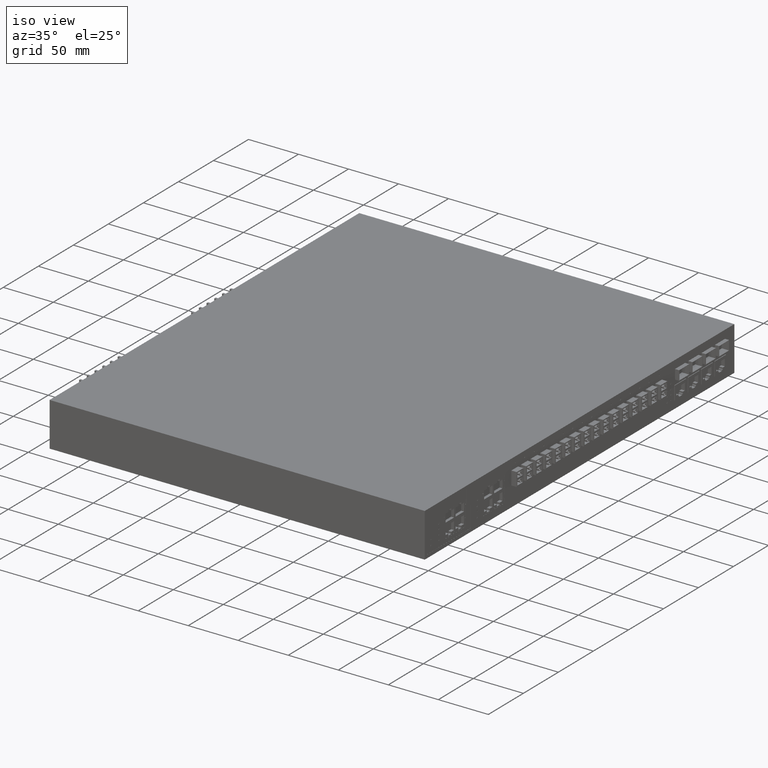
[diagram: clean part render]
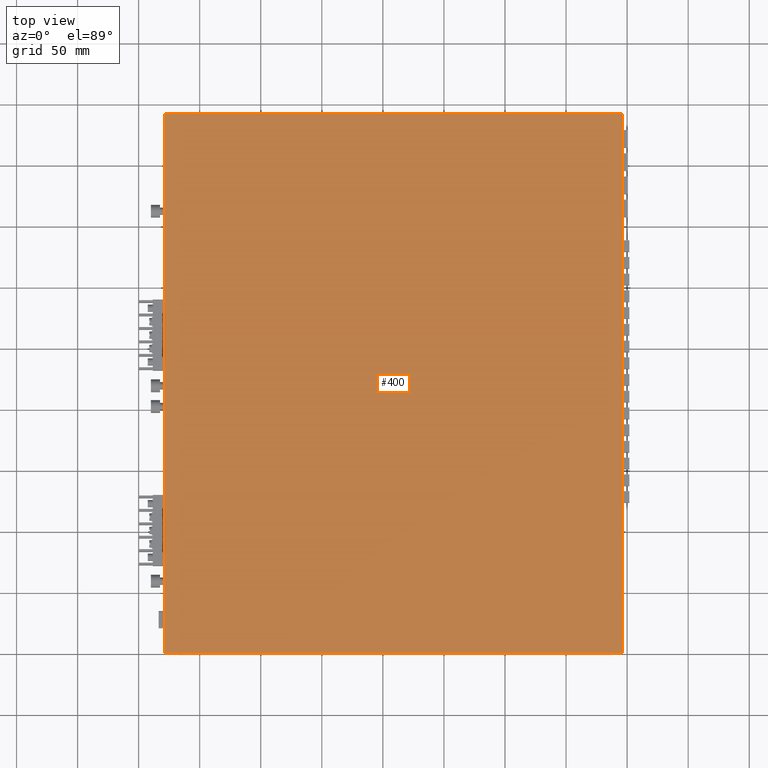
[diagram: tour spotlight — one face highlighted and labeled with its STEP entity id]
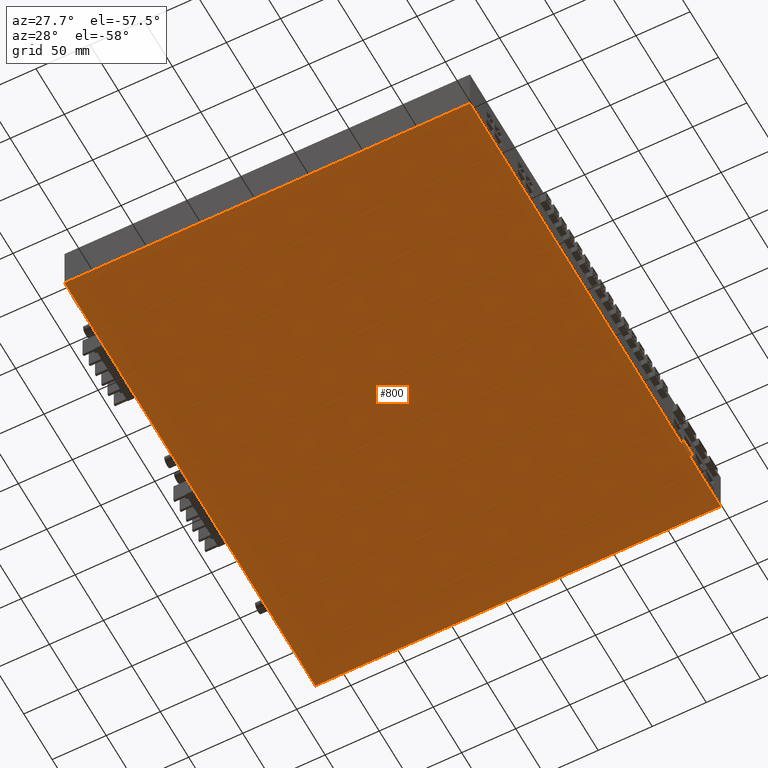
[diagram: tour spotlight — one face highlighted and labeled with its STEP entity id]
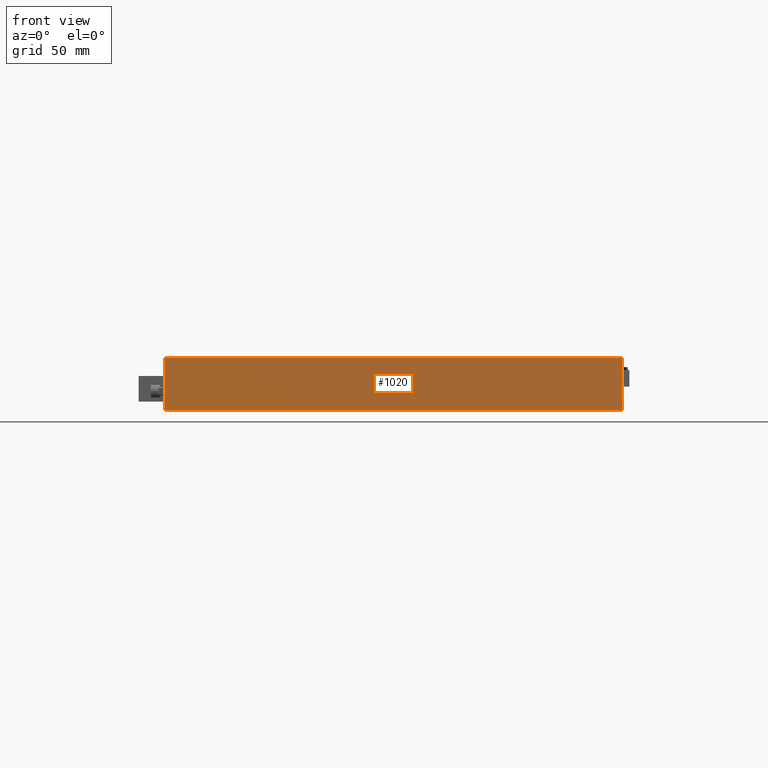
[diagram: tour spotlight — one face highlighted and labeled with its STEP entity id]
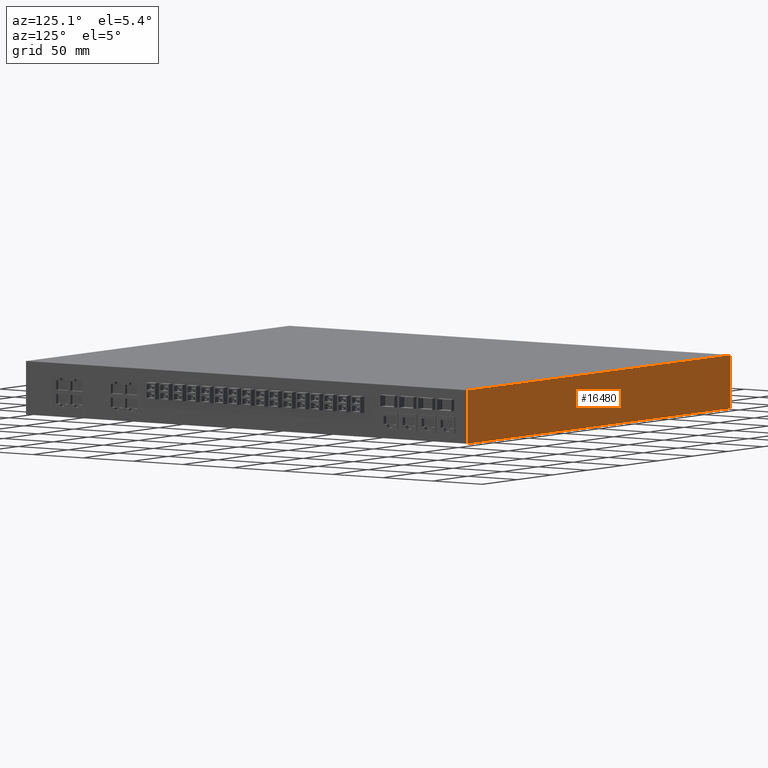
[diagram: tour spotlight — one face highlighted and labeled with its STEP entity id]
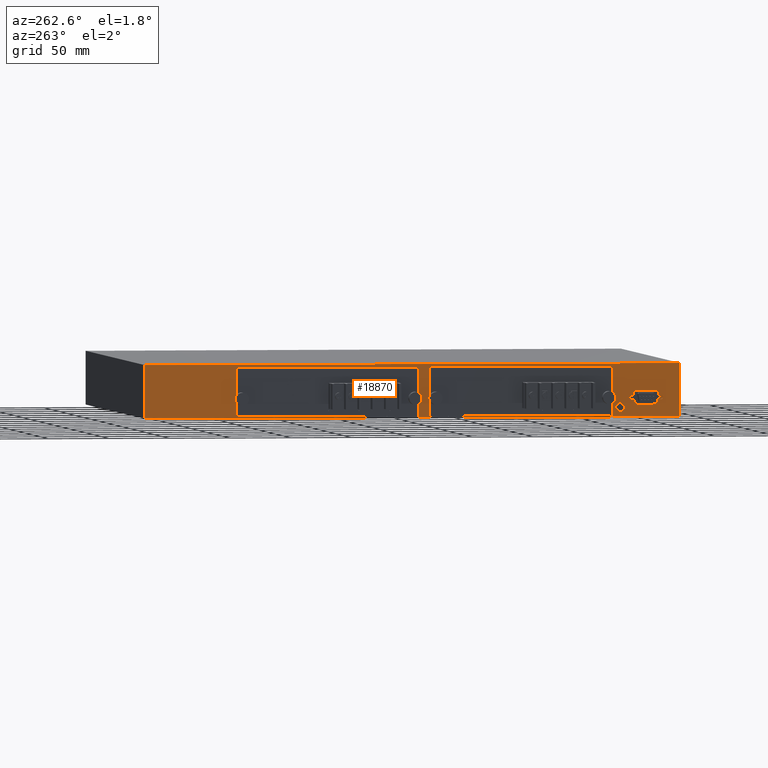
[diagram: tour spotlight — one face highlighted and labeled with its STEP entity id]
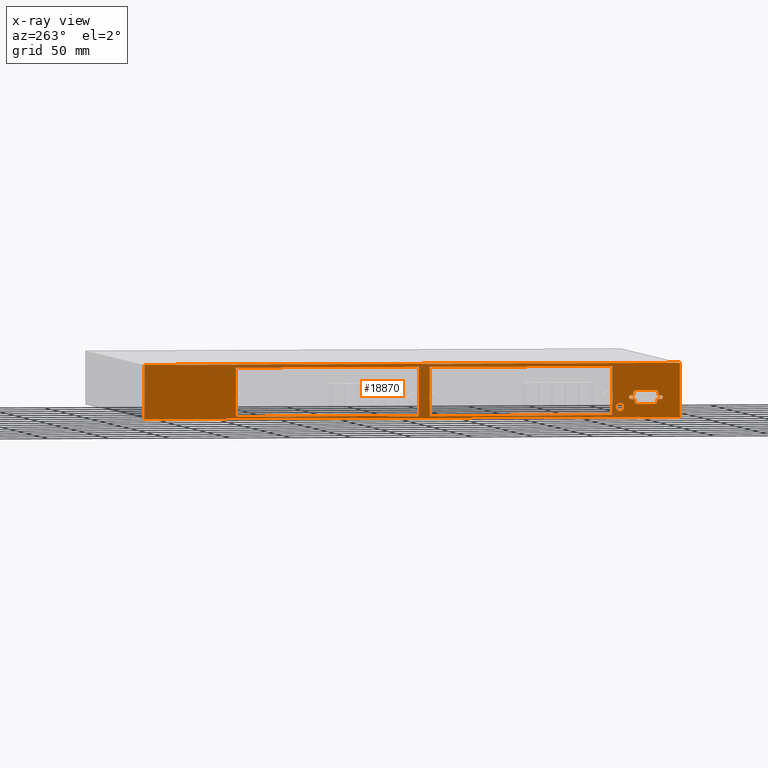
[diagram: x-ray of the same camera — body ghosted, this tour face saturated]
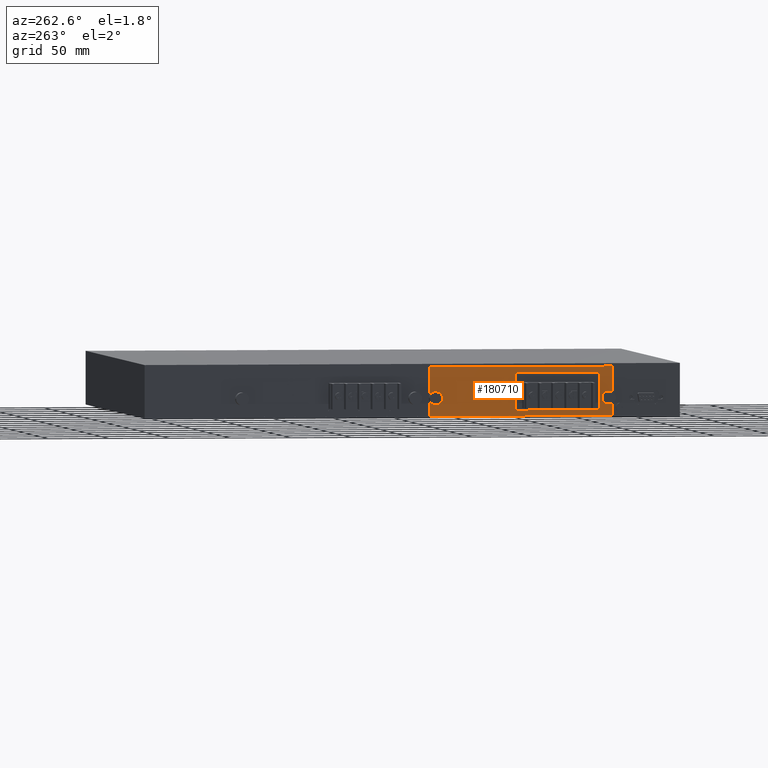
[diagram: tour spotlight — one face highlighted and labeled with its STEP entity id]
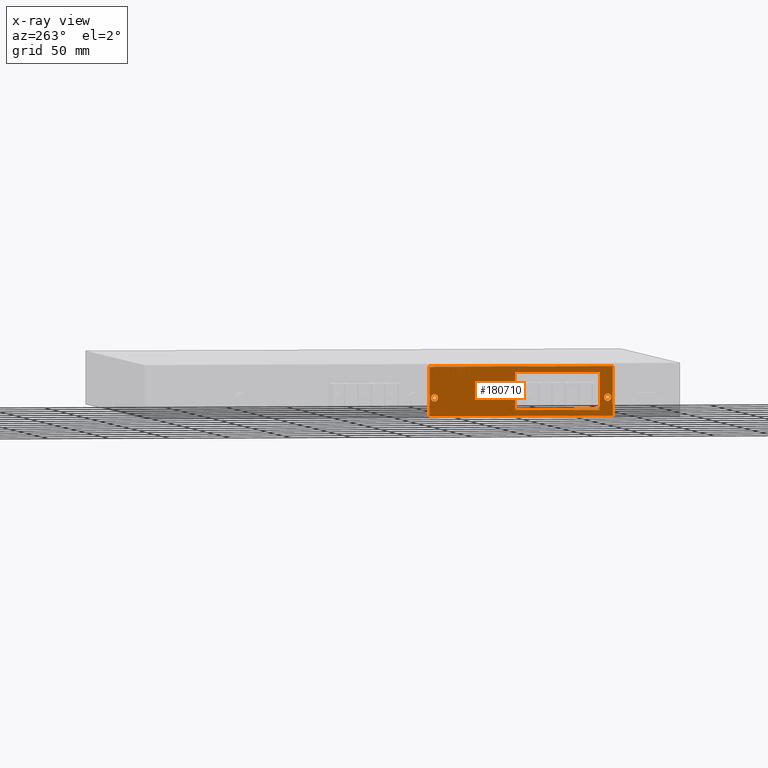
[diagram: x-ray of the same camera — body ghosted, this tour face saturated]
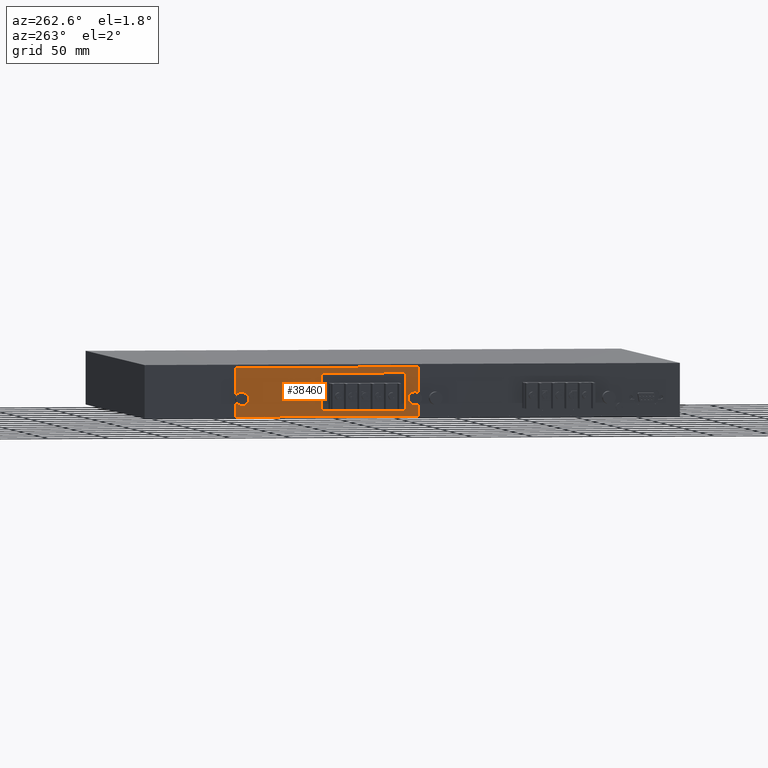
[diagram: tour spotlight — one face highlighted and labeled with its STEP entity id]
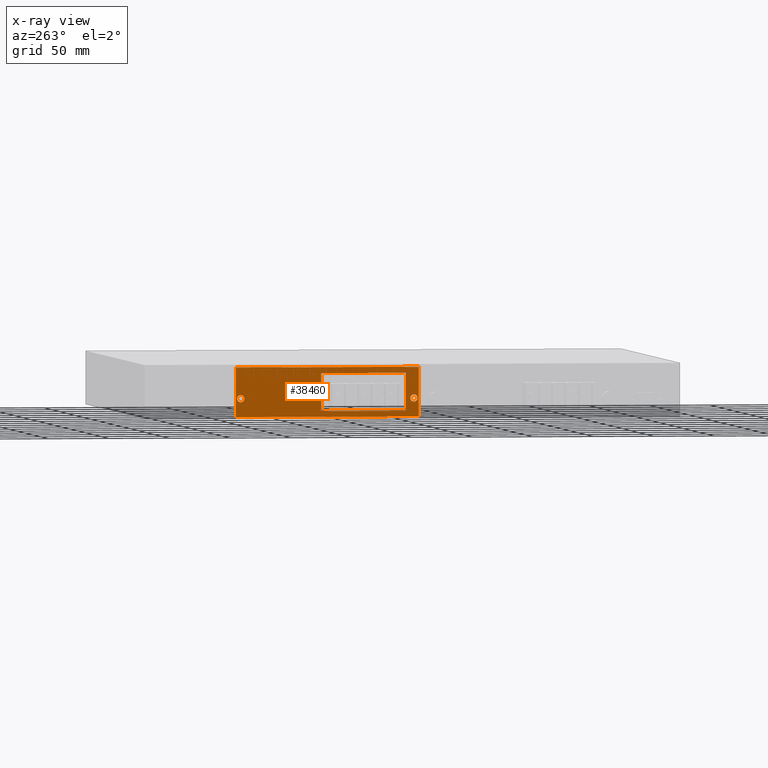
[diagram: x-ray of the same camera — body ghosted, this tour face saturated]
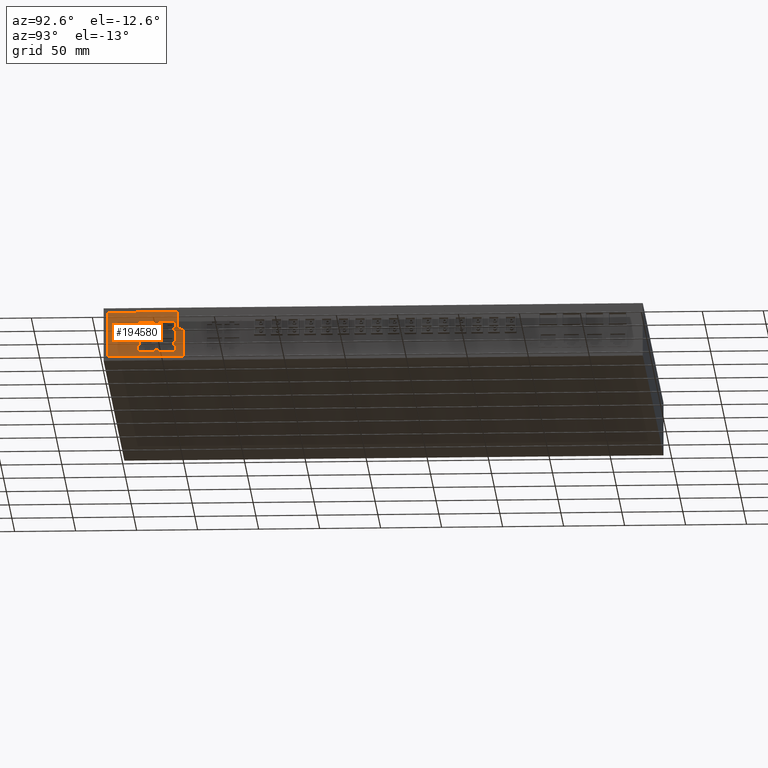
[diagram: tour spotlight — one face highlighted and labeled with its STEP entity id]
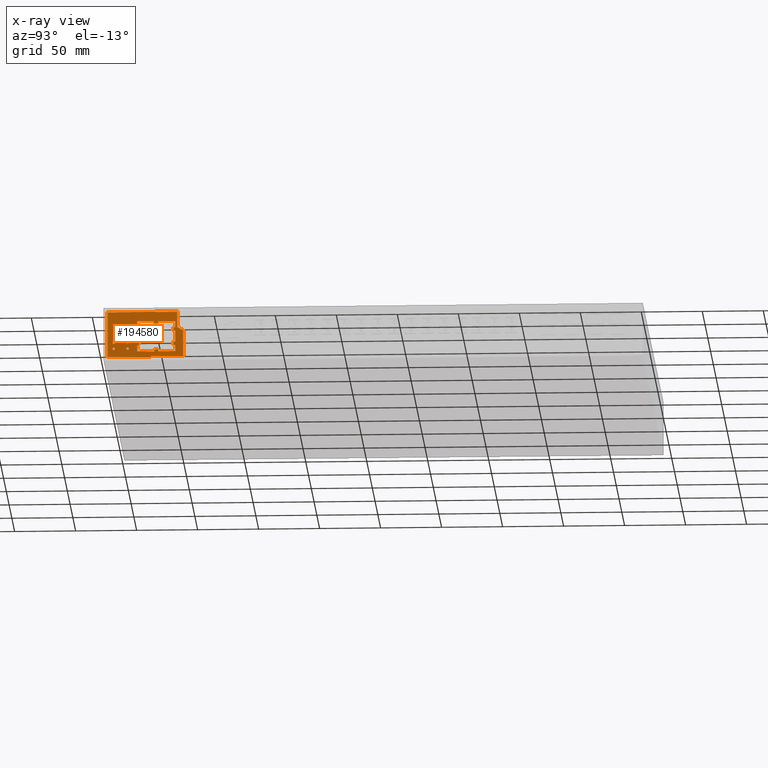
[diagram: x-ray of the same camera — body ghosted, this tour face saturated]
A machine part: a face-by-face anatomy tour. The part has 1148 B-rep faces; the first image is the clean iso view, then the 8 largest visible faces are spotlighted one at a time (largest first), each with its STEP entity span.

Face 1 — top view, entity #400. In plain terms, the highlighted planar face has unit normal (0, 0, 1).
Definition (entity closure, byte-faithful):
#10=CARTESIAN_POINT('',(-231.744053107435,4.40363222366137,
384.37506614998));
#20=DIRECTION('',(-0.,1.,0.));
#30=DIRECTION('',(1.,0.,0.));
#40=AXIS2_PLACEMENT_3D('',#10,#20,#30);
#50=PLANE('',#40);
#60=CARTESIAN_POINT('',(0.,4.40363222366137,-1.97246663447004E-11));
#70=DIRECTION('',(-1.,0.,0.));
#80=VECTOR('',#70,1.);
#90=LINE('',#60,#80);
#100=CARTESIAN_POINT('',(221.306013042565,4.40363222366137,-1.9725E-11))
;
#110=VERTEX_POINT('',#100);
#120=CARTESIAN_POINT('',(-220.693986957435,4.40363222366137,-1.9725E-11)
);
#130=VERTEX_POINT('',#120);
#140=EDGE_CURVE('',#110,#130,#90,.T.);
#150=ORIENTED_EDGE('',*,*,#140,.T.);
#160=CARTESIAN_POINT('',(221.306013042565,4.40363222366137,0.));
#170=DIRECTION('',(0.,0.,1.));
#180=VECTOR('',#170,1.);
#190=LINE('',#160,#180);
#200=CARTESIAN_POINT('',(221.306013042565,4.40363222366137,
374.99999999998));
#210=VERTEX_POINT('',#200);
#220=EDGE_CURVE('',#110,#210,#190,.T.);
#230=ORIENTED_EDGE('',*,*,#220,.F.);
#240=CARTESIAN_POINT('',(0.,4.40363222366137,374.99999999998));
#250=DIRECTION('',(-1.,0.,0.));
#260=VECTOR('',#250,1.);
#270=LINE('',#240,#260);
#280=CARTESIAN_POINT('',(-220.693986957435,4.40363222366137,
374.99999999998));
#290=VERTEX_POINT('',#280);
#300=EDGE_CURVE('',#210,#290,#270,.T.);
#310=ORIENTED_EDGE('',*,*,#300,.F.);
#320=CARTESIAN_POINT('',(-220.693986957435,4.40363222366137,0.));
#330=DIRECTION('',(0.,0.,-1.));
#340=VECTOR('',#330,1.);
#350=LINE('',#320,#340);
#360=EDGE_CURVE('',#290,#130,#350,.T.);
#370=ORIENTED_EDGE('',*,*,#360,.F.);
#380=EDGE_LOOP('',(#370,#310,#230,#150));
#390=FACE_OUTER_BOUND('',#380,.T.);
#400=ADVANCED_FACE('',(#390),#50,.T.);

Face 2 — auxiliary view, entity #800. In plain terms, the highlighted planar face has unit normal (-0, -0, -1).
Definition (entity closure, byte-faithful):
#410=CARTESIAN_POINT('',(232.356079192565,-39.5963677763395,
384.37506614998));
#420=DIRECTION('',(-0.,-1.,-0.));
#430=DIRECTION('',(-1.,0.,0.));
#440=AXIS2_PLACEMENT_3D('',#410,#420,#430);
#450=PLANE('',#440);
#460=CARTESIAN_POINT('',(-220.693986957435,-39.5963677763395,0.));
#470=DIRECTION('',(0.,0.,1.));
#480=VECTOR('',#470,1.);
#490=LINE('',#460,#480);
#500=CARTESIAN_POINT('',(-220.693986957435,-39.5963677763395,-1.9725E-11
));
#510=VERTEX_POINT('',#500);
#520=CARTESIAN_POINT('',(-220.693986957435,-39.5963677763395,
374.99999999998));
#530=VERTEX_POINT('',#520);
#540=EDGE_CURVE('',#510,#530,#490,.T.);
#550=ORIENTED_EDGE('',*,*,#540,.F.);
#560=CARTESIAN_POINT('',(0.,-39.5963677763395,374.99999999998));
#570=DIRECTION('',(1.,0.,0.));
#580=VECTOR('',#570,1.);
#590=LINE('',#560,#580);
#600=CARTESIAN_POINT('',(221.306013042565,-39.5963677763395,
374.99999999998));
#610=VERTEX_POINT('',#600);
#620=EDGE_CURVE('',#530,#610,#590,.T.);
#630=ORIENTED_EDGE('',*,*,#620,.F.);
#640=CARTESIAN_POINT('',(221.306013042565,-39.5963677763395,0.));
#650=DIRECTION('',(0.,0.,-1.));
#660=VECTOR('',#650,1.);
#670=LINE('',#640,#660);
#680=CARTESIAN_POINT('',(221.306013042565,-39.5963677763395,-1.9725E-11)
);
#690=VERTEX_POINT('',#680);
#700=EDGE_CURVE('',#610,#690,#670,.T.);
#710=ORIENTED_EDGE('',*,*,#700,.F.);
#720=CARTESIAN_POINT('',(0.,-39.5963677763395,-1.97246663447004E-11));
#730=DIRECTION('',(1.,0.,0.));
#740=VECTOR('',#730,1.);
#750=LINE('',#720,#740);
#760=EDGE_CURVE('',#510,#690,#750,.T.);
#770=ORIENTED_EDGE('',*,*,#760,.T.);
#780=EDGE_LOOP('',(#770,#710,#630,#550));
#790=FACE_OUTER_BOUND('',#780,.T.);
#800=ADVANCED_FACE('',(#790),#450,.T.);

Face 3 — front view, entity #1020. In plain terms, the highlighted planar face has unit normal (0, -1, 0).
Definition (entity closure, byte-faithful):
#120=CARTESIAN_POINT('',(-220.693986957435,4.40363222366137,-1.9725E-11)
);
#130=VERTEX_POINT('',#120);
#280=CARTESIAN_POINT('',(-220.693986957435,4.40363222366137,
374.99999999998));
#290=VERTEX_POINT('',#280);
#320=CARTESIAN_POINT('',(-220.693986957435,4.40363222366137,0.));
#330=DIRECTION('',(0.,0.,-1.));
#340=VECTOR('',#330,1.);
#350=LINE('',#320,#340);
#360=EDGE_CURVE('',#290,#130,#350,.T.);
#460=CARTESIAN_POINT('',(-220.693986957435,-39.5963677763395,0.));
#470=DIRECTION('',(0.,0.,1.));
#480=VECTOR('',#470,1.);
#490=LINE('',#460,#480);
#500=CARTESIAN_POINT('',(-220.693986957435,-39.5963677763395,-1.9725E-11
));
#510=VERTEX_POINT('',#500);
#520=CARTESIAN_POINT('',(-220.693986957435,-39.5963677763395,
374.99999999998));
#530=VERTEX_POINT('',#520);
#540=EDGE_CURVE('',#510,#530,#490,.T.);
#810=CARTESIAN_POINT('',(-220.693986957435,-40.6964339263395,
384.37506614998));
#820=DIRECTION('',(-1.,0.,0.));
#830=DIRECTION('',(0.,1.,0.));
#840=AXIS2_PLACEMENT_3D('',#810,#820,#830);
#850=PLANE('',#840);
#860=CARTESIAN_POINT('',(-220.693986957435,0.,374.99999999998));
#870=DIRECTION('',(0.,-1.,0.));
#880=VECTOR('',#870,1.);
#890=LINE('',#860,#880);
#900=EDGE_CURVE('',#290,#530,#890,.T.);
#910=ORIENTED_EDGE('',*,*,#900,.F.);
#920=ORIENTED_EDGE('',*,*,#540,.T.);
#930=CARTESIAN_POINT('',(-220.693986957435,0.,-1.97246663447004E-11));
#940=DIRECTION('',(0.,-1.,0.));
#950=VECTOR('',#940,1.);
#960=LINE('',#930,#950);
#970=EDGE_CURVE('',#130,#510,#960,.T.);
#980=ORIENTED_EDGE('',*,*,#970,.T.);
#990=ORIENTED_EDGE('',*,*,#360,.T.);
#1000=EDGE_LOOP('',(#990,#980,#920,#910));
#1010=FACE_OUTER_BOUND('',#1000,.T.);
#1020=ADVANCED_FACE('',(#1010),#850,.T.);

Face 4 — auxiliary view, entity #16480. In plain terms, the highlighted planar face has unit normal (0, 1, 0).
Definition (entity closure, byte-faithful):
#100=CARTESIAN_POINT('',(221.306013042565,4.40363222366137,-1.9725E-11))
;
#110=VERTEX_POINT('',#100);
#160=CARTESIAN_POINT('',(221.306013042565,4.40363222366137,0.));
#170=DIRECTION('',(0.,0.,1.));
#180=VECTOR('',#170,1.);
#190=LINE('',#160,#180);
#200=CARTESIAN_POINT('',(221.306013042565,4.40363222366137,
374.99999999998));
#210=VERTEX_POINT('',#200);
#220=EDGE_CURVE('',#110,#210,#190,.T.);
#600=CARTESIAN_POINT('',(221.306013042565,-39.5963677763395,
374.99999999998));
#610=VERTEX_POINT('',#600);
#640=CARTESIAN_POINT('',(221.306013042565,-39.5963677763395,0.));
#650=DIRECTION('',(0.,0.,-1.));
#660=VECTOR('',#650,1.);
#670=LINE('',#640,#660);
#680=CARTESIAN_POINT('',(221.306013042565,-39.5963677763395,-1.9725E-11)
);
#690=VERTEX_POINT('',#680);
#700=EDGE_CURVE('',#610,#690,#670,.T.);
#1080=CARTESIAN_POINT('',(221.306013042565,0.,374.99999999998));
#1090=DIRECTION('',(0.,1.,0.));
#1100=VECTOR('',#1090,1.);
#1110=LINE('',#1080,#1100);
#1120=EDGE_CURVE('',#610,#210,#1110,.T.);
#16320=CARTESIAN_POINT('',(221.306013042565,5.50369837366139,
384.37506614998));
#16330=DIRECTION('',(1.,0.,0.));
#16340=DIRECTION('',(0.,-1.,0.));
#16350=AXIS2_PLACEMENT_3D('',#16320,#16330,#16340);
#16360=PLANE('',#16350);
#16370=CARTESIAN_POINT('',(221.306013042565,0.,-1.97246663447004E-11));
#16380=DIRECTION('',(0.,1.,0.));
#16390=VECTOR('',#16380,1.);
#16400=LINE('',#16370,#16390);
#16410=EDGE_CURVE('',#690,#110,#16400,.T.);
#16420=ORIENTED_EDGE('',*,*,#16410,.T.);
#16430=ORIENTED_EDGE('',*,*,#700,.T.);
#16440=ORIENTED_EDGE('',*,*,#1120,.F.);
#16450=ORIENTED_EDGE('',*,*,#220,.T.);
#16460=EDGE_LOOP('',(#16450,#16440,#16430,#16420));
#16470=FACE_OUTER_BOUND('',#16460,.T.);
#16480=ADVANCED_FACE('',(#16470),#16360,.T.);

Face 5 — auxiliary view, entity #18870. An x-ray twin of the same camera follows (body ghosted, this face saturated) — the face is partly hidden behind the body. In plain terms, the highlighted planar face has unit normal (-1, 0, 0).
Definition (entity closure, byte-faithful):
#60=CARTESIAN_POINT('',(0.,4.40363222366137,-1.97246663447004E-11));
#70=DIRECTION('',(-1.,0.,0.));
#80=VECTOR('',#70,1.);
#90=LINE('',#60,#80);
#100=CARTESIAN_POINT('',(221.306013042565,4.40363222366137,-1.9725E-11))
;
#110=VERTEX_POINT('',#100);
#120=CARTESIAN_POINT('',(-220.693986957435,4.40363222366137,-1.9725E-11)
);
#130=VERTEX_POINT('',#120);
#140=EDGE_CURVE('',#110,#130,#90,.T.);
#500=CARTESIAN_POINT('',(-220.693986957435,-39.5963677763395,-1.9725E-11
));
#510=VERTEX_POINT('',#500);
#680=CARTESIAN_POINT('',(221.306013042565,-39.5963677763395,-1.9725E-11)
);
#690=VERTEX_POINT('',#680);
#720=CARTESIAN_POINT('',(0.,-39.5963677763395,-1.97246663447004E-11));
#730=DIRECTION('',(1.,0.,0.));
#740=VECTOR('',#730,1.);
#750=LINE('',#720,#740);
#760=EDGE_CURVE('',#510,#690,#750,.T.);
#930=CARTESIAN_POINT('',(-220.693986957435,0.,-1.97246663447004E-11));
#940=DIRECTION('',(0.,-1.,0.));
#950=VECTOR('',#940,1.);
#960=LINE('',#930,#950);
#970=EDGE_CURVE('',#130,#510,#960,.T.);
#16370=CARTESIAN_POINT('',(221.306013042565,0.,-1.97246663447004E-11));
#16380=DIRECTION('',(0.,1.,0.));
#16390=VECTOR('',#16380,1.);
#16400=LINE('',#16370,#16390);
#16410=EDGE_CURVE('',#690,#110,#16400,.T.);
#16490=CARTESIAN_POINT('',(232.356079192565,-40.6964339263395,
-1.97246663447004E-11));
#16500=DIRECTION('',(0.,0.,-1.));
#16510=DIRECTION('',(-1.,0.,0.));
#16520=AXIS2_PLACEMENT_3D('',#16490,#16500,#16510);
#16530=PLANE('',#16520);
#16540=ORIENTED_EDGE('',*,*,#140,.F.);
#16550=ORIENTED_EDGE('',*,*,#970,.F.);
#16560=ORIENTED_EDGE('',*,*,#760,.F.);
#16570=ORIENTED_EDGE('',*,*,#16410,.F.);
#16580=EDGE_LOOP('',(#16570,#16560,#16550,#16540));
#16590=FACE_OUTER_BOUND('',#16580,.T.);
#16600=CARTESIAN_POINT('',(0.,2.0036322236605,-1.97246663447004E-11));
#16610=DIRECTION('',(1.,0.,0.));
#16620=VECTOR('',#16610,1.);
#16630=LINE('',#16600,#16620);
#16640=CARTESIAN_POINT('',(-165.093986957435,2.0036322236605,-1.9725E-11
));
#16650=VERTEX_POINT('',#16640);
#16660=CARTESIAN_POINT('',(-14.0939869574354,2.0036322236605,-1.9725E-11
));
#16670=VERTEX_POINT('',#16660);
#16680=EDGE_CURVE('',#16650,#16670,#16630,.T.);
#16690=ORIENTED_EDGE('',*,*,#16680,.F.);
#16700=CARTESIAN_POINT('',(-14.0939869574354,0.,-1.97246663447004E-11));
#16710=DIRECTION('',(0.,-1.,0.));
#16720=VECTOR('',#16710,1.);
#16730=LINE('',#16700,#16720);
#16740=CARTESIAN_POINT('',(-14.0939869574354,-38.4963677763395,
-1.9725E-11));
#16750=VERTEX_POINT('',#16740);
#16760=EDGE_CURVE('',#16670,#16750,#16730,.T.);
#16770=ORIENTED_EDGE('',*,*,#16760,.F.);
#16780=CARTESIAN_POINT('',(0.,-38.4963677763395,-1.97246663447004E-11));
#16790=DIRECTION('',(-1.,0.,0.));
#16800=VECTOR('',#16790,1.);
#16810=LINE('',#16780,#16800);
#16820=CARTESIAN_POINT('',(-165.093986957435,-38.4963677763395,
-1.9725E-11));
#16830=VERTEX_POINT('',#16820);
#16840=EDGE_CURVE('',#16750,#16830,#16810,.T.);
#16850=ORIENTED_EDGE('',*,*,#16840,.F.);
#16860=CARTESIAN_POINT('',(-165.093986957435,0.,-1.97246663447004E-11));
#16870=DIRECTION('',(0.,1.,0.));
#16880=VECTOR('',#16870,1.);
#16890=LINE('',#16860,#16880);
#16900=EDGE_CURVE('',#16830,#16650,#16890,.T.);
#16910=ORIENTED_EDGE('',*,*,#16900,.F.);
#16920=EDGE_LOOP('',(#16910,#16850,#16770,#16690));
#16930=FACE_BOUND('',#16920,.T.);
#16940=CARTESIAN_POINT('',(0.,-38.4963677763395,-1.97246663447004E-11));
#16950=DIRECTION('',(-1.,0.,0.));
#16960=VECTOR('',#16950,1.);
#16970=LINE('',#16940,#16960);
#16980=CARTESIAN_POINT('',(145.906013042565,-38.4963677763395,
-1.9725E-11));
#16990=VERTEX_POINT('',#16980);
#17000=CARTESIAN_POINT('',(-5.09398695743528,-38.4963677763395,
-1.9725E-11));
#17010=VERTEX_POINT('',#17000);
#17020=EDGE_CURVE('',#16990,#17010,#16970,.T.);
#17030=ORIENTED_EDGE('',*,*,#17020,.F.);
#17040=CARTESIAN_POINT('',(-5.09398695743528,0.,-1.97246663447004E-11));
#17050=DIRECTION('',(0.,1.,0.));
#17060=VECTOR('',#17050,1.);
#17070=LINE('',#17040,#17060);
#17080=CARTESIAN_POINT('',(-5.09398695743528,2.0036322236605,-1.9725E-11
));
#17090=VERTEX_POINT('',#17080);
#17100=EDGE_CURVE('',#17010,#17090,#17070,.T.);
#17110=ORIENTED_EDGE('',*,*,#17100,.F.);
#17120=CARTESIAN_POINT('',(0.,2.0036322236605,-1.97246663447004E-11));
#17130=DIRECTION('',(1.,0.,0.));
#17140=VECTOR('',#17130,1.);
#17150=LINE('',#17120,#17140);
#17160=CARTESIAN_POINT('',(145.906013042565,2.0036322236605,-1.9725E-11)
);
#17170=VERTEX_POINT('',#17160);
#17180=EDGE_CURVE('',#17090,#17170,#17150,.T.);
#17190=ORIENTED_EDGE('',*,*,#17180,.F.);
#17200=CARTESIAN_POINT('',(145.906013042565,0.,-1.97246663447004E-11));
#17210=DIRECTION('',(0.,-1.,0.));
#17220=VECTOR('',#17210,1.);
#17230=LINE('',#17200,#17220);
#17240=EDGE_CURVE('',#17170,#16990,#17230,.T.);
#17250=ORIENTED_EDGE('',*,*,#17240,.F.);
#17260=EDGE_LOOP('',(#17250,#17190,#17110,#17030));
#17270=FACE_BOUND('',#17260,.T.);
#17280=CARTESIAN_POINT('',(0.,-29.2963677763395,-1.97246663447004E-11));
#17290=DIRECTION('',(-1.,0.,0.));
#17300=VECTOR('',#17290,1.);
#17310=LINE('',#17280,#17300);
#17320=CARTESIAN_POINT('',(-185.801863615455,-29.2963677763394,
-1.9725E-11));
#17330=VERTEX_POINT('',#17320);
#17340=CARTESIAN_POINT('',(-199.586110299416,-29.2963677763395,
-1.9725E-11));
#17350=VERTEX_POINT('',#17340);
#17360=EDGE_CURVE('',#17330,#17350,#17310,.T.);
#17370=ORIENTED_EDGE('',*,*,#17360,.F.);
#17380=CARTESIAN_POINT('',(-199.586110299416,-26.7963677763395,
-1.97246663447004E-11));
#17390=DIRECTION('',(0.,0.,1.));
#17400=DIRECTION('',(1.,0.,0.));
#17410=AXIS2_PLACEMENT_3D('',#17380,#17390,#17400);
#17420=CIRCLE('',#17410,2.50000000000003);
#17430=CARTESIAN_POINT('',(-202.048129681946,-27.2304882205068,
-1.9725E-11));
#17440=VERTEX_POINT('',#17430);
#17450=EDGE_CURVE('',#17440,#17350,#17420,.T.);
#17460=ORIENTED_EDGE('',*,*,#17450,.T.);
#17470=CARTESIAN_POINT('',(-206.849599453086,0.,-1.97246663447004E-11));
#17480=DIRECTION('',(-0.173648177666933,0.984807753012208,0.));
#17490=VECTOR('',#17480,1.);
#17500=LINE('',#17470,#17490);
#17510=CARTESIAN_POINT('',(-202.406799998264,-25.1963677763395,
-1.9725E-11));
#17520=VERTEX_POINT('',#17510);
#17530=EDGE_CURVE('',#17440,#17520,#17500,.T.);
#17540=ORIENTED_EDGE('',*,*,#17530,.F.);
#17550=CARTESIAN_POINT('',(0.,-25.1963677763395,-1.97246663447004E-11));
#17560=DIRECTION('',(-1.,0.,0.));
#17570=VECTOR('',#17560,1.);
#17580=LINE('',#17550,#17570);
#17590=CARTESIAN_POINT('',(-205.193986957435,-25.1963677763395,
-1.9725E-11));
#17600=VERTEX_POINT('',#17590);
#17610=EDGE_CURVE('',#17520,#17600,#17580,.T.);
#17620=ORIENTED_EDGE('',*,*,#17610,.F.);
#17630=CARTESIAN_POINT('',(-205.193986957435,-23.5963677763395,
-1.97246663447004E-11));
#17640=DIRECTION('',(0.,0.,1.));
#17650=DIRECTION('',(1.,0.,0.));
#17660=AXIS2_PLACEMENT_3D('',#17630,#17640,#17650);
#17670=CIRCLE('',#17660,1.60000000000001);
#17680=CARTESIAN_POINT('',(-206.793986957435,-23.5963677763395,
-1.97246663447004E-11));
#17690=VERTEX_POINT('',#17680);
#17700=EDGE_CURVE('',#17690,#17600,#17670,.T.);
#17710=ORIENTED_EDGE('',*,*,#17700,.T.);
#17720=CARTESIAN_POINT('',(-205.193986957435,-21.9963677763395,
-1.9725E-11));
#17730=VERTEX_POINT('',#17720);
#17740=EDGE_CURVE('',#17730,#17690,#17670,.T.);
#17750=ORIENTED_EDGE('',*,*,#17740,.T.);
#17760=CARTESIAN_POINT('',(0.,-21.9963677763395,-1.97246663447004E-11));
#17770=DIRECTION('',(1.,0.,0.));
#17780=VECTOR('',#17770,1.);
#17790=LINE('',#17760,#17780);
#17800=CARTESIAN_POINT('',(-202.971046336531,-21.9963677763395,
-1.9725E-11));
#17810=VERTEX_POINT('',#17800);
#17820=EDGE_CURVE('',#17730,#17810,#17790,.T.);
#17830=ORIENTED_EDGE('',*,*,#17820,.F.);
#17840=CARTESIAN_POINT('',(-206.849599453085,0.,-1.97246663447004E-11));
#17850=DIRECTION('',(-0.173648177666922,0.98480775301221,0.));
#17860=VECTOR('',#17850,1.);
#17870=LINE('',#17840,#17860);
#17880=CARTESIAN_POINT('',(-203.17662235848,-20.8304882205068,
-1.9725E-11));
#17890=VERTEX_POINT('',#17880);
#17900=EDGE_CURVE('',#17810,#17890,#17870,.T.);
#17910=ORIENTED_EDGE('',*,*,#17900,.F.);
#17920=CARTESIAN_POINT('',(-200.71460297595,-20.3963677763395,
-1.97246663447004E-11));
#17930=DIRECTION('',(0.,0.,1.));
#17940=DIRECTION('',(1.,0.,0.));
#17950=AXIS2_PLACEMENT_3D('',#17920,#17930,#17940);
#17960=CIRCLE('',#17950,2.50000000000001);
#17970=CARTESIAN_POINT('',(-200.71460297595,-17.8963677763395,
-1.9725E-11));
#17980=VERTEX_POINT('',#17970);
#17990=EDGE_CURVE('',#17980,#17890,#17960,.T.);
#18000=ORIENTED_EDGE('',*,*,#17990,.T.);
#18010=CARTESIAN_POINT('',(0.,-17.8963677763394,-1.97246663447004E-11));
#18020=DIRECTION('',(1.,0.,0.));
#18030=VECTOR('',#18020,1.);
#18040=LINE('',#18010,#18030);
#18050=CARTESIAN_POINT('',(-184.673370938921,-17.8963677763394,
-1.9725E-11));
#18060=VERTEX_POINT('',#18050);
#18070=EDGE_CURVE('',#17980,#18060,#18040,.T.);
#18080=ORIENTED_EDGE('',*,*,#18070,.F.);
#18090=CARTESIAN_POINT('',(-184.673370938921,-20.3963677763394,
-1.97246663447004E-11));
#18100=DIRECTION('',(0.,0.,1.));
#18110=DIRECTION('',(1.,0.,0.));
#18120=AXIS2_PLACEMENT_3D('',#18090,#18100,#18110);
#18130=CIRCLE('',#18120,2.49999999999997);
#18140=CARTESIAN_POINT('',(-182.21135155639,-20.8304882205068,
-1.9725E-11));
#18150=VERTEX_POINT('',#18140);
#18160=EDGE_CURVE('',#18150,#18060,#18130,.T.);
#18170=ORIENTED_EDGE('',*,*,#18160,.T.);
#18180=CARTESIAN_POINT('',(-178.538374461785,0.,-1.97246663447004E-11));
#18190=DIRECTION('',(-0.173648177666922,-0.98480775301221,0.));
#18200=VECTOR('',#18190,1.);
#18210=LINE('',#18180,#18200);
#18220=CARTESIAN_POINT('',(-182.41692757834,-21.9963677763394,
-1.9725E-11));
#18230=VERTEX_POINT('',#18220);
#18240=EDGE_CURVE('',#18150,#18230,#18210,.T.);
#18250=ORIENTED_EDGE('',*,*,#18240,.F.);
#18260=CARTESIAN_POINT('',(0.,-21.9963677763394,-1.97246663447004E-11));
#18270=DIRECTION('',(1.,0.,0.));
#18280=VECTOR('',#18270,1.);
#18290=LINE('',#18260,#18280);
#18300=CARTESIAN_POINT('',(-180.193986957435,-21.9963677763394,
-1.9725E-11));
#18310=VERTEX_POINT('',#18300);
#18320=EDGE_CURVE('',#18230,#18310,#18290,.T.);
#18330=ORIENTED_EDGE('',*,*,#18320,.F.);
#18340=CARTESIAN_POINT('',(-180.193986957435,-23.5963677763395,
-1.97246663447004E-11));
#18350=DIRECTION('',(0.,0.,1.));
#18360=DIRECTION('',(1.,0.,0.));
#18370=AXIS2_PLACEMENT_3D('',#18340,#18350,#18360);
#18380=CIRCLE('',#18370,1.59999999999995);
#18390=CARTESIAN_POINT('',(-178.593986957435,-23.5963677763395,
-1.97246663447004E-11));
#18400=VERTEX_POINT('',#18390);
#18410=EDGE_CURVE('',#18400,#18310,#18380,.T.);
#18420=ORIENTED_EDGE('',*,*,#18410,.T.);
#18430=CARTESIAN_POINT('',(-180.193986957435,-25.1963677763394,
-1.9725E-11));
#18440=VERTEX_POINT('',#18430);
#18450=EDGE_CURVE('',#18440,#18400,#18380,.T.);
#18460=ORIENTED_EDGE('',*,*,#18450,.T.);
#18470=CARTESIAN_POINT('',(0.,-25.1963677763394,-1.97246663447004E-11));
#18480=DIRECTION('',(-1.,0.,0.));
#18490=VECTOR('',#18480,1.);
#18500=LINE('',#18470,#18490);
#18510=CARTESIAN_POINT('',(-182.981173916607,-25.1963677763394,
-1.9725E-11));
#18520=VERTEX_POINT('',#18510);
#18530=EDGE_CURVE('',#18440,#18520,#18500,.T.);
#18540=ORIENTED_EDGE('',*,*,#18530,.F.);
#18550=CARTESIAN_POINT('',(-178.538374461786,0.,-1.97246663447004E-11));
#18560=DIRECTION('',(-0.173648177666909,-0.984807753012212,0.));
#18570=VECTOR('',#18560,1.);
#18580=LINE('',#18550,#18570);
#18590=CARTESIAN_POINT('',(-183.339844232924,-27.2304882205067,
-1.9725E-11));
#18600=VERTEX_POINT('',#18590);
#18610=EDGE_CURVE('',#18520,#18600,#18580,.T.);
#18620=ORIENTED_EDGE('',*,*,#18610,.F.);
#18630=CARTESIAN_POINT('',(-185.801863615455,-26.7963677763398,
-1.97246663447004E-11));
#18640=DIRECTION('',(0.,0.,1.));
#18650=DIRECTION('',(1.,0.,0.));
#18660=AXIS2_PLACEMENT_3D('',#18630,#18640,#18650);
#18670=CIRCLE('',#18660,2.49999999999958);
#18680=EDGE_CURVE('',#17330,#18600,#18670,.T.);
#18690=ORIENTED_EDGE('',*,*,#18680,.T.);
#18700=EDGE_LOOP('',(#18690,#18620,#18540,#18460,#18420,#18330,#18250,
#18170,#18080,#18000,#17910,#17830,#17750,#17710,#17620,#17540,#17460,
#17370));
#18710=FACE_BOUND('',#18700,.T.);
#18720=CARTESIAN_POINT('',(-171.293986957435,-31.5963677763395,
-1.97246663447004E-11));
#18730=DIRECTION('',(0.,0.,-1.));
#18740=DIRECTION('',(-1.,0.,0.));
#18750=AXIS2_PLACEMENT_3D('',#18720,#18730,#18740);
#18760=CIRCLE('',#18750,3.50000000000002);
#18770=CARTESIAN_POINT('',(-167.793986957435,-31.5963677763395,
-1.97249994116078E-11));
#18780=VERTEX_POINT('',#18770);
#18790=CARTESIAN_POINT('',(-174.793986957435,-31.5963677763395,
-1.97246663447004E-11));
#18800=VERTEX_POINT('',#18790);
#18810=EDGE_CURVE('',#18780,#18800,#18760,.T.);
#18820=ORIENTED_EDGE('',*,*,#18810,.F.);
#18830=EDGE_CURVE('',#18800,#18780,#18760,.T.);
#18840=ORIENTED_EDGE('',*,*,#18830,.F.);
#18850=EDGE_LOOP('',(#18840,#18820));
#18860=FACE_BOUND('',#18850,.T.);
#18870=ADVANCED_FACE('',(#16590,#16930,#17270,#18710,#18860),#16530,.T.)
;

Face 6 — auxiliary view, entity #180710. An x-ray twin of the same camera follows (body ghosted, this face saturated) — the face is partly hidden behind the body. In plain terms, the highlighted planar face has unit normal (-1, 0, 0).
Definition (entity closure, byte-faithful):
#52880=CARTESIAN_POINT('',(-14.0939869574354,0.,0.09999999998027));
#52890=DIRECTION('',(0.,1.,0.));
#52900=VECTOR('',#52890,1.);
#52910=LINE('',#52880,#52900);
#52920=CARTESIAN_POINT('',(-14.0939869574354,-38.4963677763395,
0.09999999998027));
#52930=VERTEX_POINT('',#52920);
#52940=CARTESIAN_POINT('',(-14.0939869574354,2.0036322236605,
0.09999999998027));
#52950=VERTEX_POINT('',#52940);
#52960=EDGE_CURVE('',#52930,#52950,#52910,.T.);
#53260=CARTESIAN_POINT('',(0.,-38.4963677763395,0.09999999998027));
#53270=DIRECTION('',(1.,0.,0.));
#53280=VECTOR('',#53270,1.);
#53290=LINE('',#53260,#53280);
#53300=CARTESIAN_POINT('',(-165.093986957435,-38.4963677763395,
0.09999999998027));
#53310=VERTEX_POINT('',#53300);
#53320=EDGE_CURVE('',#53310,#52930,#53290,.T.);
#130370=CARTESIAN_POINT('',(-154.593986957435,-2.79636777633966,
0.09999999998027));
#130380=VERTEX_POINT('',#130370);
#130410=CARTESIAN_POINT('',(-154.593986957435,0.,0.09999999998027));
#130420=DIRECTION('',(0.,1.,0.));
#130430=VECTOR('',#130420,1.);
#130440=LINE('',#130410,#130430);
#130450=CARTESIAN_POINT('',(-154.593986957435,-33.7963677763396,
0.09999999998027));
#130460=VERTEX_POINT('',#130450);
#130470=EDGE_CURVE('',#130460,#130380,#130440,.T.);
#130790=CARTESIAN_POINT('',(0.,-33.7963677763396,0.09999999998027));
#130800=DIRECTION('',(-1.,0.,0.));
#130810=VECTOR('',#130800,1.);
#130820=LINE('',#130790,#130810);
#130830=CARTESIAN_POINT('',(-84.593986957435,-33.7963677763396,
0.09999999998027));
#130840=VERTEX_POINT('',#130830);
#130850=EDGE_CURVE('',#130840,#130460,#130820,.T.);
#131100=CARTESIAN_POINT('',(-84.593986957435,0.,0.09999999998027));
#131110=DIRECTION('',(0.,-1.,0.));
#131120=VECTOR('',#131110,1.);
#131130=LINE('',#131100,#131120);
#131140=CARTESIAN_POINT('',(-84.593986957435,-2.79636777633966,
0.09999999998027));
#131150=VERTEX_POINT('',#131140);
#131160=EDGE_CURVE('',#131150,#130840,#131130,.T.);
#131390=CARTESIAN_POINT('',(0.,-2.79636777633966,0.09999999998027));
#131400=DIRECTION('',(1.,0.,0.));
#131410=VECTOR('',#131400,1.);
#131420=LINE('',#131390,#131410);
#131430=EDGE_CURVE('',#130380,#131150,#131420,.T.);
#152170=CARTESIAN_POINT('',(-165.093986957435,0.,0.09999999998027));
#152180=DIRECTION('',(0.,-1.,0.));
#152190=VECTOR('',#152180,1.);
#152200=LINE('',#152170,#152190);
#152210=CARTESIAN_POINT('',(-165.093986957435,2.0036322236605,
0.09999999998027));
#152220=VERTEX_POINT('',#152210);
#152230=EDGE_CURVE('',#152220,#53310,#152200,.T.);
#178380=CARTESIAN_POINT('',(-164.093986957435,-23.4963677763395,
0.0999999999802696));
#178390=VERTEX_POINT('',#178380);
#178420=CARTESIAN_POINT('',(-161.093986957435,-23.4963677763395,
0.0999999999802696));
#178430=DIRECTION('',(0.,0.,1.));
#178440=DIRECTION('',(1.,0.,0.));
#178450=AXIS2_PLACEMENT_3D('',#178420,#178430,#178440);
#178460=CIRCLE('',#178450,3.00000000000001);
#178470=CARTESIAN_POINT('',(-158.093986957435,-23.4963677763395,
0.0999999999802696));
#178480=VERTEX_POINT('',#178470);
#178490=EDGE_CURVE('',#178390,#178480,#178460,.T.);
#180090=CARTESIAN_POINT('',(-21.0939869574354,-23.4963677763395,
0.0999999999802696));
#180100=VERTEX_POINT('',#180090);
#180130=CARTESIAN_POINT('',(-18.0939869574354,-23.4963677763395,
0.0999999999802696));
#180140=DIRECTION('',(0.,0.,1.));
#180150=DIRECTION('',(1.,0.,0.));
#180160=AXIS2_PLACEMENT_3D('',#180130,#180140,#180150);
#180170=CIRCLE('',#180160,2.99999999999999);
#180180=CARTESIAN_POINT('',(-15.0939869574354,-23.4963677763395,
0.0999999999802696));
#180190=VERTEX_POINT('',#180180);
#180200=EDGE_CURVE('',#180100,#180190,#180170,.T.);
#180390=CARTESIAN_POINT('',(-10.3189208074354,-39.5089339263395,
0.09999999998027));
#180400=DIRECTION('',(0.,0.,-1.));
#180410=DIRECTION('',(-1.,0.,0.));
#180420=AXIS2_PLACEMENT_3D('',#180390,#180400,#180410);
#180430=PLANE('',#180420);
#180440=ORIENTED_EDGE('',*,*,#52960,.F.);
#180450=CARTESIAN_POINT('',(0.,2.0036322236605,0.09999999998027));
#180460=DIRECTION('',(-1.,0.,0.));
#180470=VECTOR('',#180460,1.);
#180480=LINE('',#180450,#180470);
#180490=EDGE_CURVE('',#52950,#152220,#180480,.T.);
#180500=ORIENTED_EDGE('',*,*,#180490,.F.);
#180510=ORIENTED_EDGE('',*,*,#152230,.F.);
#180520=ORIENTED_EDGE('',*,*,#53320,.F.);
#180530=EDGE_LOOP('',(#180520,#180510,#180500,#180440));
#180540=FACE_OUTER_BOUND('',#180530,.T.);
#180550=ORIENTED_EDGE('',*,*,#180200,.T.);
#180560=EDGE_CURVE('',#180190,#180100,#180170,.T.);
#180570=ORIENTED_EDGE('',*,*,#180560,.T.);
#180580=EDGE_LOOP('',(#180570,#180550));
#180590=FACE_BOUND('',#180580,.T.);
#180600=ORIENTED_EDGE('',*,*,#178490,.T.);
#180610=EDGE_CURVE('',#178480,#178390,#178460,.T.);
#180620=ORIENTED_EDGE('',*,*,#180610,.T.);
#180630=EDGE_LOOP('',(#180620,#180600));
#180640=FACE_BOUND('',#180630,.T.);
#180650=ORIENTED_EDGE('',*,*,#130470,.F.);
#180660=ORIENTED_EDGE('',*,*,#131430,.F.);
#180670=ORIENTED_EDGE('',*,*,#131160,.F.);
#180680=ORIENTED_EDGE('',*,*,#130850,.F.);
#180690=EDGE_LOOP('',(#180680,#180670,#180660,#180650));
#180700=FACE_BOUND('',#180690,.T.);
#180710=ADVANCED_FACE('',(#180540,#180590,#180640,#180700),#180430,.T.);

Face 7 — auxiliary view, entity #38460. An x-ray twin of the same camera follows (body ghosted, this face saturated) — the face is partly hidden behind the body. In plain terms, the highlighted planar face has unit normal (-1, 0, 0).
Definition (entity closure, byte-faithful):
#37430=CARTESIAN_POINT('',(149.681079192565,-39.5089339263395,
0.09999999998027));
#37440=DIRECTION('',(0.,0.,-1.));
#37450=DIRECTION('',(-1.,0.,0.));
#37460=AXIS2_PLACEMENT_3D('',#37430,#37440,#37450);
#37470=PLANE('',#37460);
#37480=CARTESIAN_POINT('',(145.906013042565,0.,0.09999999998027));
#37490=DIRECTION('',(0.,1.,0.));
#37500=VECTOR('',#37490,1.);
#37510=LINE('',#37480,#37500);
#37520=CARTESIAN_POINT('',(145.906013042565,-38.4963677763395,
0.09999999998027));
#37530=VERTEX_POINT('',#37520);
#37540=CARTESIAN_POINT('',(145.906013042565,2.0036322236605,
0.09999999998027));
#37550=VERTEX_POINT('',#37540);
#37560=EDGE_CURVE('',#37530,#37550,#37510,.T.);
#37570=ORIENTED_EDGE('',*,*,#37560,.F.);
#37580=CARTESIAN_POINT('',(0.,2.0036322236605,0.09999999998027));
#37590=DIRECTION('',(-1.,0.,0.));
#37600=VECTOR('',#37590,1.);
#37610=LINE('',#37580,#37600);
#37620=CARTESIAN_POINT('',(-5.09398695743528,2.0036322236605,
0.09999999998027));
#37630=VERTEX_POINT('',#37620);
#37640=EDGE_CURVE('',#37550,#37630,#37610,.T.);
#37650=ORIENTED_EDGE('',*,*,#37640,.F.);
#37660=CARTESIAN_POINT('',(-5.09398695743528,0.,0.09999999998027));
#37670=DIRECTION('',(0.,-1.,0.));
#37680=VECTOR('',#37670,1.);
#37690=LINE('',#37660,#37680);
#37700=CARTESIAN_POINT('',(-5.09398695743535,-38.4963677763395,
0.09999999998027));
#37710=VERTEX_POINT('',#37700);
#37720=EDGE_CURVE('',#37630,#37710,#37690,.T.);
#37730=ORIENTED_EDGE('',*,*,#37720,.F.);
#37740=CARTESIAN_POINT('',(0.,-38.4963677763395,0.09999999998027));
#37750=DIRECTION('',(1.,0.,0.));
#37760=VECTOR('',#37750,1.);
#37770=LINE('',#37740,#37760);
#37780=EDGE_CURVE('',#37710,#37530,#37770,.T.);
#37790=ORIENTED_EDGE('',*,*,#37780,.F.);
#37800=EDGE_LOOP('',(#37790,#37730,#37650,#37570));
#37810=FACE_OUTER_BOUND('',#37800,.T.);
#37820=CARTESIAN_POINT('',(141.906013042565,-23.4963677763394,
0.0999999999802696));
#37830=DIRECTION('',(0.,0.,1.));
#37840=DIRECTION('',(1.,0.,0.));
#37850=AXIS2_PLACEMENT_3D('',#37820,#37830,#37840);
#37860=CIRCLE('',#37850,2.99999999999999);
#37870=CARTESIAN_POINT('',(144.906013042565,-23.4963677763394,
0.0999999999802696));
#37880=VERTEX_POINT('',#37870);
#37890=CARTESIAN_POINT('',(138.906013042565,-23.4963677763394,
0.0999999999802696));
#37900=VERTEX_POINT('',#37890);
#37910=EDGE_CURVE('',#37880,#37900,#37860,.T.);
#37920=ORIENTED_EDGE('',*,*,#37910,.T.);
#37930=EDGE_CURVE('',#37900,#37880,#37860,.T.);
#37940=ORIENTED_EDGE('',*,*,#37930,.T.);
#37950=EDGE_LOOP('',(#37940,#37920));
#37960=FACE_BOUND('',#37950,.T.);
#37970=CARTESIAN_POINT('',(-1.09398695743536,-23.4963677763395,
0.0999999999802696));
#37980=DIRECTION('',(0.,0.,1.));
#37990=DIRECTION('',(1.,0.,0.));
#38000=AXIS2_PLACEMENT_3D('',#37970,#37980,#37990);
#38010=CIRCLE('',#38000,2.99999999999999);
#38020=CARTESIAN_POINT('',(-4.09398695743535,-23.4963677763395,
0.0999999999802696));
#38030=VERTEX_POINT('',#38020);
#38040=CARTESIAN_POINT('',(1.90601304256463,-23.4963677763395,
0.0999999999802696));
#38050=VERTEX_POINT('',#38040);
#38060=EDGE_CURVE('',#38030,#38050,#38010,.T.);
#38070=ORIENTED_EDGE('',*,*,#38060,.T.);
#38080=EDGE_CURVE('',#38050,#38030,#38010,.T.);
#38090=ORIENTED_EDGE('',*,*,#38080,.T.);
#38100=EDGE_LOOP('',(#38090,#38070));
#38110=FACE_BOUND('',#38100,.T.);
#38120=CARTESIAN_POINT('',(5.40601304256532,0.,0.09999999998027));
#38130=DIRECTION('',(0.,1.,0.));
#38140=VECTOR('',#38130,1.);
#38150=LINE('',#38120,#38140);
#38160=CARTESIAN_POINT('',(5.40601304256532,-33.7963677763396,
0.09999999998027));
#38170=VERTEX_POINT('',#38160);
#38180=CARTESIAN_POINT('',(5.40601304256532,-2.79636777633966,
0.09999999998027));
#38190=VERTEX_POINT('',#38180);
#38200=EDGE_CURVE('',#38170,#38190,#38150,.T.);
#38210=ORIENTED_EDGE('',*,*,#38200,.F.);
#38220=CARTESIAN_POINT('',(0.,-2.79636777633966,0.09999999998027));
#38230=DIRECTION('',(1.,0.,0.));
#38240=VECTOR('',#38230,1.);
#38250=LINE('',#38220,#38240);
#38260=CARTESIAN_POINT('',(75.406013042565,-2.79636777633966,
0.09999999998027));
#38270=VERTEX_POINT('',#38260);
#38280=EDGE_CURVE('',#38190,#38270,#38250,.T.);
#38290=ORIENTED_EDGE('',*,*,#38280,.F.);
#38300=CARTESIAN_POINT('',(75.406013042565,0.,0.09999999998027));
#38310=DIRECTION('',(0.,-1.,0.));
#38320=VECTOR('',#38310,1.);
#38330=LINE('',#38300,#38320);
#38340=CARTESIAN_POINT('',(75.406013042565,-33.7963677763396,
0.09999999998027));
#38350=VERTEX_POINT('',#38340);
#38360=EDGE_CURVE('',#38270,#38350,#38330,.T.);
#38370=ORIENTED_EDGE('',*,*,#38360,.F.);
#38380=CARTESIAN_POINT('',(0.,-33.7963677763396,0.09999999998027));
#38390=DIRECTION('',(-1.,0.,0.));
#38400=VECTOR('',#38390,1.);
#38410=LINE('',#38380,#38400);
#38420=EDGE_CURVE('',#38350,#38170,#38410,.T.);
#38430=ORIENTED_EDGE('',*,*,#38420,.F.);
#38440=EDGE_LOOP('',(#38430,#38370,#38290,#38210));
#38450=FACE_BOUND('',#38440,.T.);
#38460=ADVANCED_FACE('',(#37810,#37960,#38110,#38450),#37470,.T.);

Face 8 — auxiliary view, entity #194580. An x-ray twin of the same camera follows (body ghosted, this face saturated) — the face is partly hidden behind the body. In plain terms, the highlighted planar face has unit normal (1, 0, 0).
Definition (entity closure, byte-faithful):
#43770=CARTESIAN_POINT('',(0.,1.05363198524305,374.89999999998));
#43780=DIRECTION('',(-1.,0.,0.));
#43790=VECTOR('',#43780,1.);
#43800=LINE('',#43770,#43790);
#43810=CARTESIAN_POINT('',(-160.3439877919,1.05363198524305,
374.89999999998));
#43820=VERTEX_POINT('',#43810);
#43830=CARTESIAN_POINT('',(-217.3439877919,1.05363198524305,
374.89999999998));
#43840=VERTEX_POINT('',#43830);
#43850=EDGE_CURVE('',#43820,#43840,#43800,.T.);
#44150=CARTESIAN_POINT('',(-160.3439877919,0.,374.89999999998));
#44160=DIRECTION('',(0.,1.,0.));
#44170=VECTOR('',#44160,1.);
#44180=LINE('',#44150,#44170);
#44190=CARTESIAN_POINT('',(-160.3439877919,-11.8563677763395,
374.89999999998));
#44200=VERTEX_POINT('',#44190);
#44210=EDGE_CURVE('',#44200,#43820,#44180,.T.);
#44460=CARTESIAN_POINT('',(0.,-104.431012290931,374.89999999998));
#44470=DIRECTION('',(-0.866025403784439,0.5,0.));
#44480=VECTOR('',#44470,1.);
#44490=LINE('',#44460,#44480);
#44500=CARTESIAN_POINT('',(-155.3439877919,-14.7431191222876,
374.89999999998));
#44510=VERTEX_POINT('',#44500);
#44520=EDGE_CURVE('',#44510,#44200,#44490,.T.);
#44770=CARTESIAN_POINT('',(-155.3439877919,0.,374.89999999998));
#44780=DIRECTION('',(0.,1.,0.));
#44790=VECTOR('',#44780,1.);
#44800=LINE('',#44770,#44790);
#44810=CARTESIAN_POINT('',(-155.3439877919,-36.2463677763384,
374.89999999998));
#44820=VERTEX_POINT('',#44810);
#44830=EDGE_CURVE('',#44820,#44510,#44800,.T.);
#45080=CARTESIAN_POINT('',(0.,-36.2463677763384,374.89999999998));
#45090=DIRECTION('',(1.,0.,0.));
#45100=VECTOR('',#45090,1.);
#45110=LINE('',#45080,#45100);
#45120=CARTESIAN_POINT('',(-217.3439877919,-36.2463677763384,
374.89999999998));
#45130=VERTEX_POINT('',#45120);
#45140=EDGE_CURVE('',#45130,#44820,#45110,.T.);
#45390=CARTESIAN_POINT('',(-217.3439877919,0.,374.89999999998));
#45400=DIRECTION('',(0.,-1.,0.));
#45410=VECTOR('',#45400,1.);
#45420=LINE('',#45390,#45410);
#45430=EDGE_CURVE('',#43840,#45130,#45420,.T.);
#191100=CARTESIAN_POINT('',(-163.318986957435,-11.8563677763395,
374.89999999998));
#191110=VERTEX_POINT('',#191100);
#191140=CARTESIAN_POINT('',(-163.318986957435,0.,374.89999999998));
#191150=DIRECTION('',(0.,-1.,0.));
#191160=VECTOR('',#191150,1.);
#191170=LINE('',#191140,#191160);
#191180=CARTESIAN_POINT('',(-163.318986957435,-14.8563677763395,
374.89999999998));
#191190=VERTEX_POINT('',#191180);
#191200=EDGE_CURVE('',#191110,#191190,#191170,.T.);
#191380=CARTESIAN_POINT('',(-218.8940539419,-37.1789339203779,
374.89999999998));
#191390=DIRECTION('',(0.,0.,1.));
#191400=DIRECTION('',(1.,0.,0.));
#191410=AXIS2_PLACEMENT_3D('',#191380,#191390,#191400);
#191420=PLANE('',#191410);
#191430=ORIENTED_EDGE('',*,*,#45430,.T.);
#191440=ORIENTED_EDGE('',*,*,#43850,.T.);
#191450=ORIENTED_EDGE('',*,*,#44210,.T.);
#191460=ORIENTED_EDGE('',*,*,#44520,.T.);
#191470=ORIENTED_EDGE('',*,*,#44830,.T.);
#191480=ORIENTED_EDGE('',*,*,#45140,.T.);
#191490=EDGE_LOOP('',(#191480,#191470,#191460,#191450,#191440,#191430));
#191500=FACE_OUTER_BOUND('',#191490,.T.);
#191510=CARTESIAN_POINT('',(-200.993986957435,-24.416367776338,
374.89999999998));
#191520=DIRECTION('',(0.,0.,1.));
#191530=DIRECTION('',(1.,0.,0.));
#191540=AXIS2_PLACEMENT_3D('',#191510,#191520,#191530);
#191550=CIRCLE('',#191540,1.00000000000004);
#191560=CARTESIAN_POINT('',(-201.993986957435,-24.416367776338,
374.89999999998));
#191570=VERTEX_POINT('',#191560);
#191580=CARTESIAN_POINT('',(-199.993986957435,-24.416367776338,
374.89999999998));
#191590=VERTEX_POINT('',#191580);
#191600=EDGE_CURVE('',#191570,#191590,#191550,.T.);
#191610=ORIENTED_EDGE('',*,*,#191600,.F.);
#191620=EDGE_CURVE('',#191590,#191570,#191550,.T.);
#191630=ORIENTED_EDGE('',*,*,#191620,.F.);
#191640=EDGE_LOOP('',(#191630,#191610));
#191650=FACE_BOUND('',#191640,.T.);
#191660=CARTESIAN_POINT('',(-212.393986957435,-24.416367776338,
374.89999999998));
#191670=DIRECTION('',(0.,0.,1.));
#191680=DIRECTION('',(1.,0.,0.));
#191690=AXIS2_PLACEMENT_3D('',#191660,#191670,#191680);
#191700=CIRCLE('',#191690,1.00000000000002);
#191710=CARTESIAN_POINT('',(-213.393986957435,-24.416367776338,
374.89999999998));
#191720=VERTEX_POINT('',#191710);
#191730=CARTESIAN_POINT('',(-211.393986957435,-24.416367776338,
374.89999999998));
#191740=VERTEX_POINT('',#191730);
#191750=EDGE_CURVE('',#191720,#191740,#191700,.T.);
#191760=ORIENTED_EDGE('',*,*,#191750,.F.);
#191770=EDGE_CURVE('',#191740,#191720,#191700,.T.);
#191780=ORIENTED_EDGE('',*,*,#191770,.F.);
#191790=EDGE_LOOP('',(#191780,#191760));
#191800=FACE_BOUND('',#191790,.T.);
#191810=CARTESIAN_POINT('',(-212.393986957435,-29.4963677763381,
374.89999999998));
#191820=DIRECTION('',(0.,0.,1.));
#191830=DIRECTION('',(1.,0.,0.));
#191840=AXIS2_PLACEMENT_3D('',#191810,#191820,#191830);
#191850=CIRCLE('',#191840,1.00000000000002);
#191860=CARTESIAN_POINT('',(-213.393986957435,-29.4963677763381,
374.89999999998));
#191870=VERTEX_POINT('',#191860);
#191880=CARTESIAN_POINT('',(-211.393986957435,-29.4963677763381,
374.89999999998));
#191890=VERTEX_POINT('',#191880);
#191900=EDGE_CURVE('',#191870,#191890,#191850,.T.);
#191910=ORIENTED_EDGE('',*,*,#191900,.F.);
#191920=EDGE_CURVE('',#191890,#191870,#191850,.T.);
#191930=ORIENTED_EDGE('',*,*,#191920,.F.);
#191940=EDGE_LOOP('',(#191930,#191910));
#191950=FACE_BOUND('',#191940,.T.);
#191960=CARTESIAN_POINT('',(-200.993986957435,-14.2563677763382,
374.89999999998));
#191970=DIRECTION('',(0.,0.,1.));
#191980=DIRECTION('',(1.,0.,0.));
#191990=AXIS2_PLACEMENT_3D('',#191960,#191970,#191980);
#192000=CIRCLE('',#191990,0.999999999999988);
#192010=CARTESIAN_POINT('',(-199.993986957435,-14.2563677763382,
374.89999999998));
#192020=VERTEX_POINT('',#192010);
#192030=CARTESIAN_POINT('',(-201.993986957435,-14.2563677763382,
374.89999999998));
#192040=VERTEX_POINT('',#192030);
#192050=EDGE_CURVE('',#192020,#192040,#192000,.T.);
#192060=ORIENTED_EDGE('',*,*,#192050,.F.);
#192070=EDGE_CURVE('',#192040,#192020,#192000,.T.);
#192080=ORIENTED_EDGE('',*,*,#192070,.F.);
#192090=EDGE_LOOP('',(#192080,#192060));
#192100=FACE_BOUND('',#192090,.T.);
#192110=CARTESIAN_POINT('',(-200.993986957435,-29.4963677763381,
374.89999999998));
#192120=DIRECTION('',(0.,0.,1.));
#192130=DIRECTION('',(1.,0.,0.));
#192140=AXIS2_PLACEMENT_3D('',#192110,#192120,#192130);
#192150=CIRCLE('',#192140,1.00000000000004);
#192160=CARTESIAN_POINT('',(-199.993986957435,-29.4963677763381,
374.89999999998));
#192170=VERTEX_POINT('',#192160);
#192180=CARTESIAN_POINT('',(-201.993986957435,-29.4963677763381,
374.89999999998));
#192190=VERTEX_POINT('',#192180);
#192200=EDGE_CURVE('',#192170,#192190,#192150,.T.);
#192210=ORIENTED_EDGE('',*,*,#192200,.F.);
#192220=EDGE_CURVE('',#192190,#192170,#192150,.T.);
#192230=ORIENTED_EDGE('',*,*,#192220,.F.);
#192240=EDGE_LOOP('',(#192230,#192210));
#192250=FACE_BOUND('',#192240,.T.);
#192260=CARTESIAN_POINT('',(-200.993986957435,-19.3363677763382,
374.89999999998));
#192270=DIRECTION('',(0.,0.,1.));
#192280=DIRECTION('',(1.,0.,0.));
#192290=AXIS2_PLACEMENT_3D('',#192260,#192270,#192280);
#192300=CIRCLE('',#192290,1.00000000000004);
#192310=CARTESIAN_POINT('',(-201.993986957435,-19.3363677763382,
374.89999999998));
#192320=VERTEX_POINT('',#192310);
#192330=CARTESIAN_POINT('',(-199.993986957435,-19.3363677763382,
374.89999999998));
#192340=VERTEX_POINT('',#192330);
#192350=EDGE_CURVE('',#192320,#192340,#192300,.T.);
#192360=ORIENTED_EDGE('',*,*,#192350,.F.);
#192370=EDGE_CURVE('',#192340,#192320,#192300,.T.);
#192380=ORIENTED_EDGE('',*,*,#192370,.F.);
#192390=EDGE_LOOP('',(#192380,#192360));
#192400=FACE_BOUND('',#192390,.T.);
#192410=CARTESIAN_POINT('',(0.,-6.6963677763395,374.89999999998));
#192420=DIRECTION('',(1.,0.,0.));
#192430=VECTOR('',#192420,1.);
#192440=LINE('',#192410,#192430);
#192450=CARTESIAN_POINT('',(-175.968986957435,-6.6963677763395,
374.89999999998));
#192460=VERTEX_POINT('',#192450);
#192470=CARTESIAN_POINT('',(-161.818986957435,-6.6963677763395,
374.89999999998));
#192480=VERTEX_POINT('',#192470);
#192490=EDGE_CURVE('',#192460,#192480,#192440,.T.);
#192500=ORIENTED_EDGE('',*,*,#192490,.T.);
#192510=CARTESIAN_POINT('',(-175.968986957435,0.,374.89999999998));
#192520=DIRECTION('',(0.,1.,0.));
#192530=VECTOR('',#192520,1.);
#192540=LINE('',#192510,#192530);
#192550=CARTESIAN_POINT('',(-175.968986957435,-8.1963677763395,
374.89999999998));
#192560=VERTEX_POINT('',#192550);
#192570=EDGE_CURVE('',#192560,#192460,#192540,.T.);
#192580=ORIENTED_EDGE('',*,*,#192570,.T.);
#192590=CARTESIAN_POINT('',(0.,-8.1963677763395,374.89999999998));
#192600=DIRECTION('',(1.,0.,0.));
#192610=VECTOR('',#192600,1.);
#192620=LINE('',#192590,#192610);
#192630=CARTESIAN_POINT('',(-178.968986957435,-8.1963677763395,
374.89999999998));
#192640=VERTEX_POINT('',#192630);
#192650=EDGE_CURVE('',#192640,#192560,#192620,.T.);
#192660=ORIENTED_EDGE('',*,*,#192650,.T.);
#192670=CARTESIAN_POINT('',(-178.968986957435,0.,374.89999999998));
#192680=DIRECTION('',(0.,-1.,0.));
#192690=VECTOR('',#192680,1.);
#192700=LINE('',#192670,#192690);
#192710=CARTESIAN_POINT('',(-178.968986957435,-6.6963677763395,
374.89999999998));
#192720=VERTEX_POINT('',#192710);
#192730=EDGE_CURVE('',#192720,#192640,#192700,.T.);
#192740=ORIENTED_EDGE('',*,*,#192730,.T.);
#192750=CARTESIAN_POINT('',(0.,-6.6963677763395,374.89999999998));
#192760=DIRECTION('',(1.,0.,0.));
#192770=VECTOR('',#192760,1.);
#192780=LINE('',#192750,#192770);
#192790=CARTESIAN_POINT('',(-193.118986957435,-6.6963677763395,
374.89999999998));
#192800=VERTEX_POINT('',#192790);
#192810=EDGE_CURVE('',#192800,#192720,#192780,.T.);
#192820=ORIENTED_EDGE('',*,*,#192810,.T.);
#192830=CARTESIAN_POINT('',(-193.118986957435,0.,374.89999999998));
#192840=DIRECTION('',(0.,1.,0.));
#192850=VECTOR('',#192840,1.);
#192860=LINE('',#192830,#192850);
#192870=CARTESIAN_POINT('',(-193.118986957435,-11.8563677763395,
374.89999999998));
#192880=VERTEX_POINT('',#192870);
#192890=EDGE_CURVE('',#192880,#192800,#192860,.T.);
#192900=ORIENTED_EDGE('',*,*,#192890,.T.);
#192910=CARTESIAN_POINT('',(0.,-11.8563677763395,374.89999999998));
#192920=DIRECTION('',(-1.,0.,0.));
#192930=VECTOR('',#192920,1.);
#192940=LINE('',#192910,#192930);
#192950=CARTESIAN_POINT('',(-191.618986957435,-11.8563677763395,
374.89999999998));
#192960=VERTEX_POINT('',#192950);
#192970=EDGE_CURVE('',#192960,#192880,#192940,.T.);
#192980=ORIENTED_EDGE('',*,*,#192970,.T.);
#192990=CARTESIAN_POINT('',(-191.618986957435,0.,374.89999999998));
#193000=DIRECTION('',(0.,1.,0.));
#193010=VECTOR('',#193000,1.);
#193020=LINE('',#192990,#193010);
#193030=CARTESIAN_POINT('',(-191.618986957435,-14.8563677763395,
374.89999999998));
#193040=VERTEX_POINT('',#193030);
#193050=EDGE_CURVE('',#193040,#192960,#193020,.T.);
#193060=ORIENTED_EDGE('',*,*,#193050,.T.);
#193070=CARTESIAN_POINT('',(0.,-14.8563677763395,374.89999999998));
#193080=DIRECTION('',(1.,0.,0.));
#193090=VECTOR('',#193080,1.);
#193100=LINE('',#193070,#193090);
#193110=CARTESIAN_POINT('',(-193.118986957435,-14.8563677763395,
374.89999999998));
#193120=VERTEX_POINT('',#193110);
#193130=EDGE_CURVE('',#193120,#193040,#193100,.T.);
#193140=ORIENTED_EDGE('',*,*,#193130,.T.);
#193150=CARTESIAN_POINT('',(-193.118986957435,0.,374.89999999998));
#193160=DIRECTION('',(0.,1.,0.));
#193170=VECTOR('',#193160,1.);
#193180=LINE('',#193150,#193170);
#193190=CARTESIAN_POINT('',(-193.118986957435,-23.8363677763395,
374.89999999998));
#193200=VERTEX_POINT('',#193190);
#193210=EDGE_CURVE('',#193200,#193120,#193180,.T.);
#193220=ORIENTED_EDGE('',*,*,#193210,.T.);
#193230=CARTESIAN_POINT('',(0.,-23.8363677763395,374.89999999998));
#193240=DIRECTION('',(-1.,0.,0.));
#193250=VECTOR('',#193240,1.);
#193260=LINE('',#193230,#193250);
#193270=CARTESIAN_POINT('',(-191.618986957435,-23.8363677763395,
374.89999999998));
#193280=VERTEX_POINT('',#193270);
#193290=EDGE_CURVE('',#193280,#193200,#193260,.T.);
#193300=ORIENTED_EDGE('',*,*,#193290,.T.);
#193310=CARTESIAN_POINT('',(-191.618986957435,0.,374.89999999998));
#193320=DIRECTION('',(0.,1.,0.));
#193330=VECTOR('',#193320,1.);
#193340=LINE('',#193310,#193330);
#193350=CARTESIAN_POINT('',(-191.618986957435,-26.8363677763395,
374.89999999998));
#193360=VERTEX_POINT('',#193350);
#193370=EDGE_CURVE('',#193360,#193280,#193340,.T.);
#193380=ORIENTED_EDGE('',*,*,#193370,.T.);
#193390=CARTESIAN_POINT('',(0.,-26.8363677763395,374.89999999998));
#193400=DIRECTION('',(1.,0.,0.));
#193410=VECTOR('',#193400,1.);
#193420=LINE('',#193390,#193410);
#193430=CARTESIAN_POINT('',(-193.118986957435,-26.8363677763395,
374.89999999998));
#193440=VERTEX_POINT('',#193430);
#193450=EDGE_CURVE('',#193440,#193360,#193420,.T.);
#193460=ORIENTED_EDGE('',*,*,#193450,.T.);
#193470=CARTESIAN_POINT('',(-193.118986957435,0.,374.89999999998));
#193480=DIRECTION('',(0.,1.,0.));
#193490=VECTOR('',#193480,1.);
#193500=LINE('',#193470,#193490);
#193510=CARTESIAN_POINT('',(-193.118986957435,-31.9963677763395,
374.89999999998));
#193520=VERTEX_POINT('',#193510);
#193530=EDGE_CURVE('',#193520,#193440,#193500,.T.);
#193540=ORIENTED_EDGE('',*,*,#193530,.T.);
#193550=CARTESIAN_POINT('',(0.,-31.9963677763395,374.89999999998));
#193560=DIRECTION('',(-1.,0.,0.));
#193570=VECTOR('',#193560,1.);
#193580=LINE('',#193550,#193570);
#193590=CARTESIAN_POINT('',(-178.968986957435,-31.9963677763395,
374.89999999998));
#193600=VERTEX_POINT('',#193590);
#193610=EDGE_CURVE('',#193600,#193520,#193580,.T.);
#193620=ORIENTED_EDGE('',*,*,#193610,.T.);
#193630=CARTESIAN_POINT('',(-178.968986957435,0.,374.89999999998));
#193640=DIRECTION('',(0.,-1.,0.));
#193650=VECTOR('',#193640,1.);
#193660=LINE('',#193630,#193650);
#193670=CARTESIAN_POINT('',(-178.968986957435,-30.4963677763395,
374.89999999998));
#193680=VERTEX_POINT('',#193670);
#193690=EDGE_CURVE('',#193680,#193600,#193660,.T.);
#193700=ORIENTED_EDGE('',*,*,#193690,.T.);
#193710=CARTESIAN_POINT('',(0.,-30.4963677763395,374.89999999998));
#193720=DIRECTION('',(-1.,0.,0.));
#193730=VECTOR('',#193720,1.);
#193740=LINE('',#193710,#193730);
#193750=CARTESIAN_POINT('',(-175.968986957435,-30.4963677763395,
374.89999999998));
#193760=VERTEX_POINT('',#193750);
#193770=EDGE_CURVE('',#193760,#193680,#193740,.T.);
#193780=ORIENTED_EDGE('',*,*,#193770,.T.);
#193790=CARTESIAN_POINT('',(-175.968986957435,0.,374.89999999998));
#193800=DIRECTION('',(0.,1.,0.));
#193810=VECTOR('',#193800,1.);
#193820=LINE('',#193790,#193810);
#193830=CARTESIAN_POINT('',(-175.968986957435,-31.9963677763395,
374.89999999998));
#193840=VERTEX_POINT('',#193830);
#193850=EDGE_CURVE('',#193840,#193760,#193820,.T.);
#193860=ORIENTED_EDGE('',*,*,#193850,.T.);
#193870=CARTESIAN_POINT('',(0.,-31.9963677763395,374.89999999998));
#193880=DIRECTION('',(-1.,0.,0.));
#193890=VECTOR('',#193880,1.);
#193900=LINE('',#193870,#193890);
#193910=CARTESIAN_POINT('',(-161.818986957435,-31.9963677763395,
374.89999999998));
#193920=VERTEX_POINT('',#193910);
#193930=EDGE_CURVE('',#193920,#193840,#193900,.T.);
#193940=ORIENTED_EDGE('',*,*,#193930,.T.);
#193950=CARTESIAN_POINT('',(-161.818986957435,0.,374.89999999998));
#193960=DIRECTION('',(0.,-1.,0.));
#193970=VECTOR('',#193960,1.);
#193980=LINE('',#193950,#193970);
#193990=CARTESIAN_POINT('',(-161.818986957435,-26.8363677763395,
374.89999999998));
#194000=VERTEX_POINT('',#193990);
#194010=EDGE_CURVE('',#194000,#193920,#193980,.T.);
#194020=ORIENTED_EDGE('',*,*,#194010,.T.);
#194030=CARTESIAN_POINT('',(0.,-26.8363677763395,374.89999999998));
#194040=DIRECTION('',(1.,0.,0.));
#194050=VECTOR('',#194040,1.);
#194060=LINE('',#194030,#194050);
#194070=CARTESIAN_POINT('',(-163.318986957435,-26.8363677763395,
374.89999999998));
#194080=VERTEX_POINT('',#194070);
#194090=EDGE_CURVE('',#194080,#194000,#194060,.T.);
#194100=ORIENTED_EDGE('',*,*,#194090,.T.);
#194110=CARTESIAN_POINT('',(-163.318986957435,0.,374.89999999998));
#194120=DIRECTION('',(0.,-1.,0.));
#194130=VECTOR('',#194120,1.);
#194140=LINE('',#194110,#194130);
#194150=CARTESIAN_POINT('',(-163.318986957435,-23.8363677763395,
374.89999999998));
#194160=VERTEX_POINT('',#194150);
#194170=EDGE_CURVE('',#194160,#194080,#194140,.T.);
#194180=ORIENTED_EDGE('',*,*,#194170,.T.);
#194190=CARTESIAN_POINT('',(0.,-23.8363677763395,374.89999999998));
#194200=DIRECTION('',(-1.,0.,0.));
#194210=VECTOR('',#194200,1.);
#194220=LINE('',#194190,#194210);
#194230=CARTESIAN_POINT('',(-161.818986957435,-23.8363677763395,
374.89999999998));
#194240=VERTEX_POINT('',#194230);
#194250=EDGE_CURVE('',#194240,#194160,#194220,.T.);
#194260=ORIENTED_EDGE('',*,*,#194250,.T.);
#194270=CARTESIAN_POINT('',(-161.818986957435,0.,374.89999999998));
#194280=DIRECTION('',(0.,-1.,0.));
#194290=VECTOR('',#194280,1.);
#194300=LINE('',#194270,#194290);
#194310=CARTESIAN_POINT('',(-161.818986957435,-14.8563677763395,
374.89999999998));
#194320=VERTEX_POINT('',#194310);
#194330=EDGE_CURVE('',#194320,#194240,#194300,.T.);
#194340=ORIENTED_EDGE('',*,*,#194330,.T.);
#194350=CARTESIAN_POINT('',(0.,-14.8563677763395,374.89999999998));
#194360=DIRECTION('',(1.,0.,0.));
#194370=VECTOR('',#194360,1.);
#194380=LINE('',#194350,#194370);
#194390=EDGE_CURVE('',#191190,#194320,#194380,.T.);
#194400=ORIENTED_EDGE('',*,*,#194390,.T.);
#194410=ORIENTED_EDGE('',*,*,#191200,.T.);
#194420=CARTESIAN_POINT('',(0.,-11.8563677763395,374.89999999998));
#194430=DIRECTION('',(-1.,0.,0.));
#194440=VECTOR('',#194430,1.);
#194450=LINE('',#194420,#194440);
#194460=CARTESIAN_POINT('',(-161.818986957435,-11.8563677763395,
374.89999999998));
#194470=VERTEX_POINT('',#194460);
#194480=EDGE_CURVE('',#194470,#191110,#194450,.T.);
#194490=ORIENTED_EDGE('',*,*,#194480,.T.);
#194500=CARTESIAN_POINT('',(-161.818986957435,0.,374.89999999998));
#194510=DIRECTION('',(0.,-1.,0.));
#194520=VECTOR('',#194510,1.);
#194530=LINE('',#194500,#194520);
#194540=EDGE_CURVE('',#192480,#194470,#194530,.T.);
#194550=ORIENTED_EDGE('',*,*,#194540,.T.);
#194560=EDGE_LOOP('',(#194550,#194490,#194410,#194400,#194340,#194260,
#194180,#194100,#194020,#193940,#193860,#193780,#193700,#193620,#193540,
#193460,#193380,#193300,#193220,#193140,#193060,#192980,#192900,#192820,
#192740,#192660,#192580,#192500));
#194570=FACE_BOUND('',#194560,.T.);
#194580=ADVANCED_FACE('',(#191500,#191650,#191800,#191950,#192100,
#192250,#192400,#194570),#191420,.T.);